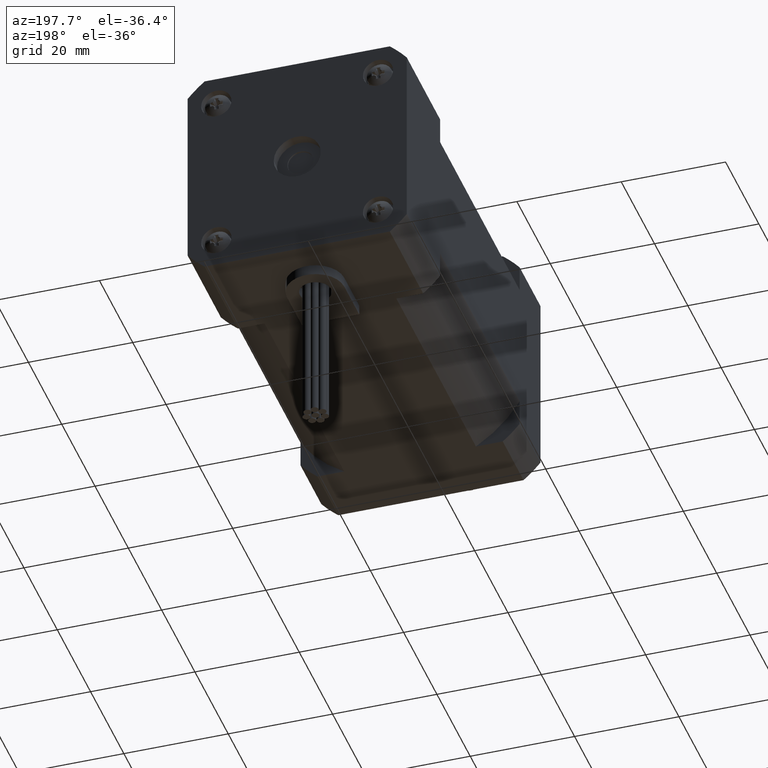
[diagram: clean part render]
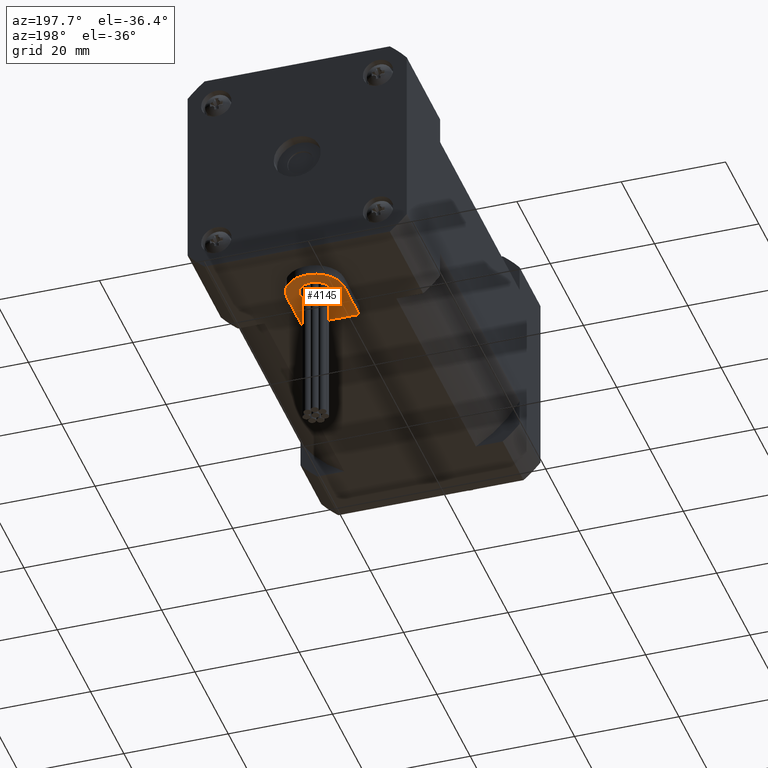
[diagram: same view with one face highlighted and labeled with its STEP entity id]
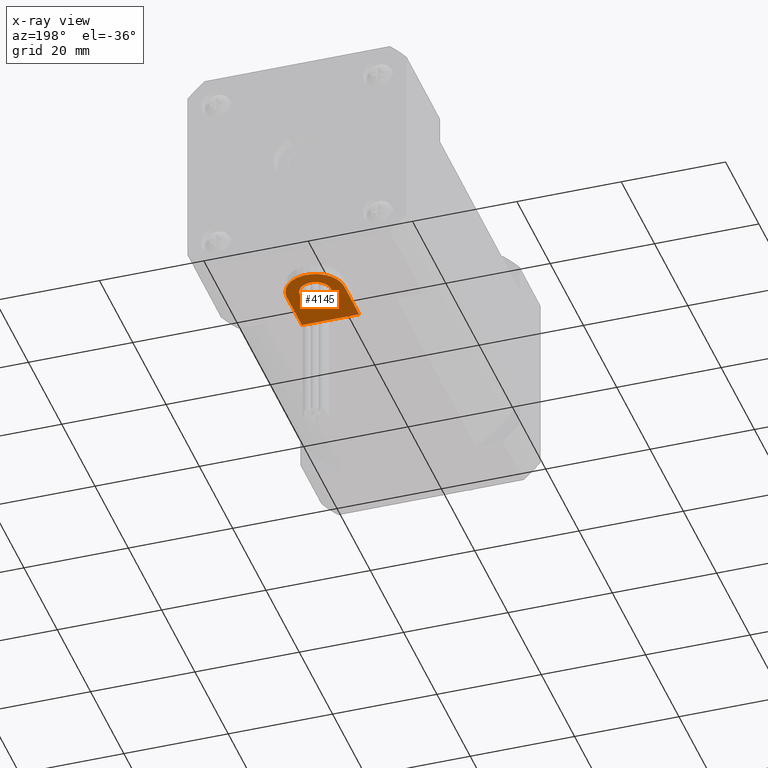
[diagram: x-ray of the same camera — body ghosted, the highlighted face saturated]
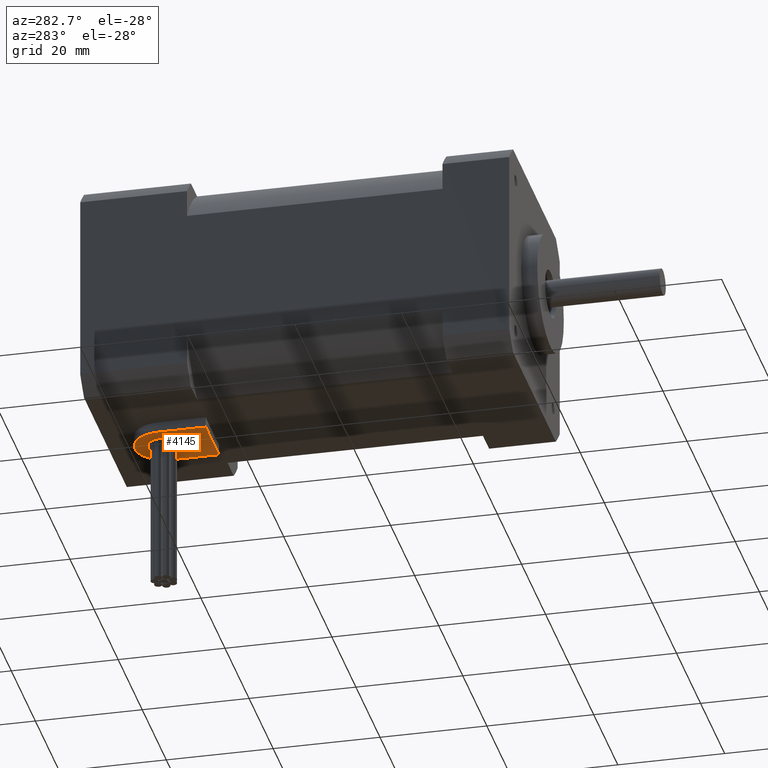
[diagram: same view with one face highlighted and labeled with its STEP entity id]
A machine part, auxiliary view. The second image highlights one B-rep face of the part: STEP entity #4145.
The next image is the same camera in x-ray: the body ghosted, the highlighted face saturated — about 0% of this face is hidden behind the body in this view.
A second angle (auxiliary view) of the same face is appended — the face is thin or edge-on in the first view.
In plain terms, the highlighted planar face has unit normal (0, 0, 1).
Its self-contained STEP definition (entity closure, byte-faithful):
#208=PLANE('',#4440);
#349=LINE('',#6266,#571);
#354=LINE('',#6280,#576);
#357=LINE('',#6284,#579);
#571=VECTOR('',#5006,0.9);
#576=VECTOR('',#5019,0.9);
#579=VECTOR('',#5024,1.1);
#779=FACE_BOUND('',#1147,.T.);
#879=FACE_OUTER_BOUND('',#1146,.T.);
#1146=EDGE_LOOP('',(#2750,#2751,#2752,#2753));
#1147=EDGE_LOOP('',(#2754));
#1482=CIRCLE('',#4432,0.3);
#1485=CIRCLE('',#4437,0.55);
#1732=VERTEX_POINT('',#6253);
#1737=VERTEX_POINT('',#6263);
#1738=VERTEX_POINT('',#6265);
#1740=VERTEX_POINT('',#6271);
#1743=VERTEX_POINT('',#6279);
#2142=EDGE_CURVE('',#1732,#1732,#1482,.T.);
#2147=EDGE_CURVE('',#1738,#1737,#349,.T.);
#2150=EDGE_CURVE('',#1740,#1738,#1485,.T.);
#2154=EDGE_CURVE('',#1743,#1740,#354,.T.);
#2157=EDGE_CURVE('',#1737,#1743,#357,.T.);
#2750=ORIENTED_EDGE('',*,*,#2157,.T.);
#2751=ORIENTED_EDGE('',*,*,#2154,.T.);
#2752=ORIENTED_EDGE('',*,*,#2150,.T.);
#2753=ORIENTED_EDGE('',*,*,#2147,.T.);
#2754=ORIENTED_EDGE('',*,*,#2142,.T.);
#4145=ADVANCED_FACE('',(#879,#779),#208,.F.);
#4432=AXIS2_PLACEMENT_3D('',#6254,#4997,#4998);
#4437=AXIS2_PLACEMENT_3D('',#6272,#5012,#5013);
#4440=AXIS2_PLACEMENT_3D('',#6285,#5025,#5026);
#4997=DIRECTION('center_axis',(1.66533453693774E-16,1.24501532695106E-16,
1.));
#4998=DIRECTION('ref_axis',(1.,-1.45477499778469E-16,-1.66533453693774E-16));
#5006=DIRECTION('',(-1.45477499778469E-16,-1.,1.24501532695106E-16));
#5012=DIRECTION('center_axis',(-1.66533453693774E-16,-1.24501532695106E-16,
-1.));
#5013=DIRECTION('ref_axis',(-1.,1.45477499778469E-16,1.66533453693774E-16));
#5019=DIRECTION('',(1.45477499778469E-16,1.,-1.24501532695106E-16));
#5024=DIRECTION('',(-1.,1.45477499778469E-16,1.66533453693774E-16));
#5025=DIRECTION('center_axis',(1.66533453693774E-16,1.24501532695106E-16,
1.));
#5026=DIRECTION('ref_axis',(1.,0.,-2.22044604925031E-16));
#6253=CARTESIAN_POINT('',(-0.715259953298977,4.59264350961966,-0.852197207720415));
#6254=CARTESIAN_POINT('Origin',(-0.415259953298977,4.59264350961966,-0.852197207720415));
#6263=CARTESIAN_POINT('',(0.134740046701023,3.69264350961966,-0.852197207720415));
#6265=CARTESIAN_POINT('',(0.134740046701023,4.59264350961966,-0.852197207720415));
#6266=CARTESIAN_POINT('',(0.134740046701023,4.59264350961966,-0.852197207720415));
#6271=CARTESIAN_POINT('',(-0.965259953298977,4.59264350961966,-0.852197207720415));
#6272=CARTESIAN_POINT('Origin',(-0.415259953298977,4.59264350961966,-0.852197207720415));
#6279=CARTESIAN_POINT('',(-0.965259953298977,3.69264350961966,-0.852197207720415));
#6280=CARTESIAN_POINT('',(-0.965259953298977,3.69264350961966,-0.852197207720415));
#6284=CARTESIAN_POINT('',(0.134740046701023,3.69264350961966,-0.852197207720415));
#6285=CARTESIAN_POINT('Origin',(-0.415259953298977,4.27179601570287,-0.852197207720415));